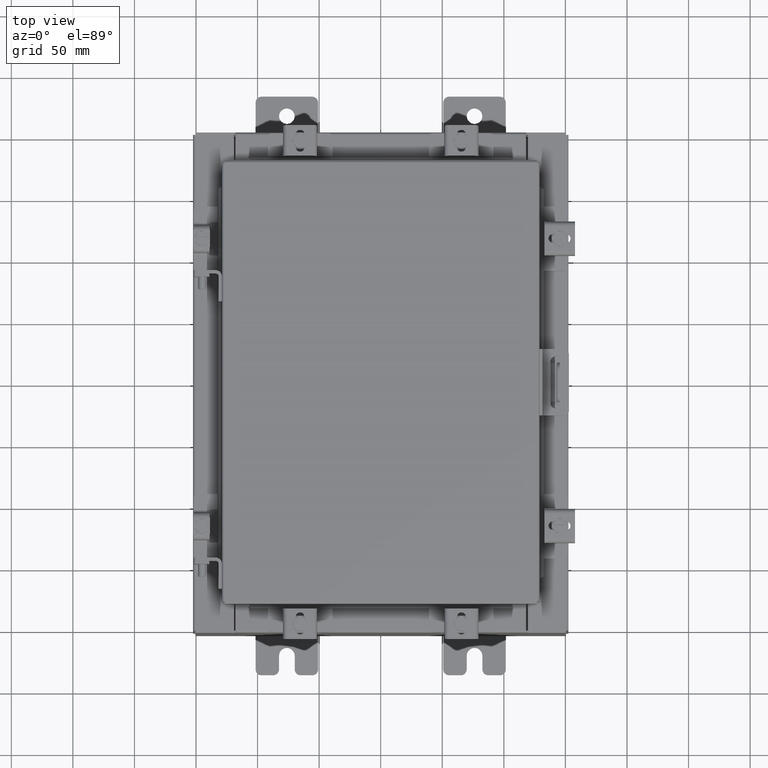
[diagram: clean part render]
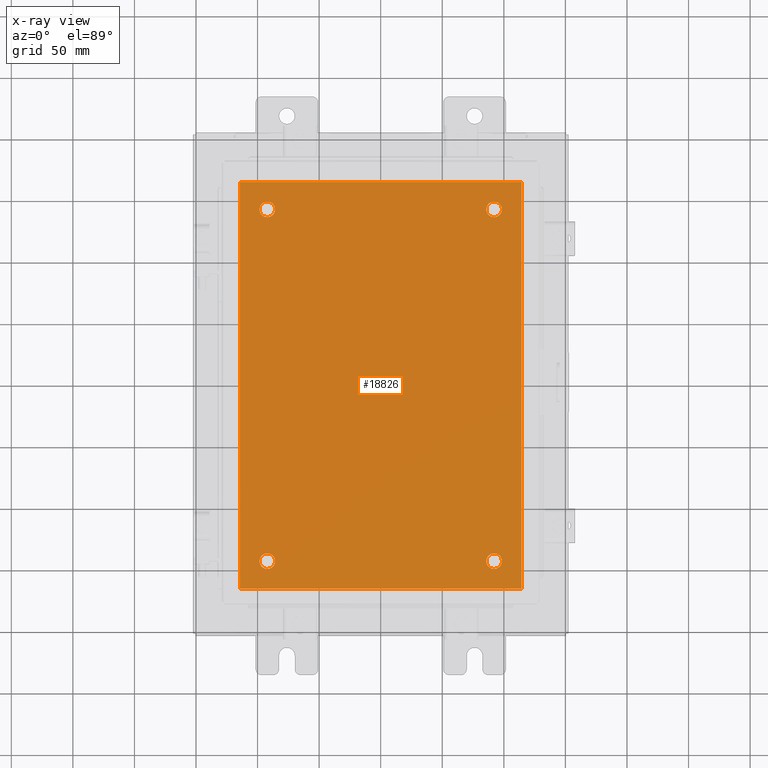
[diagram: x-ray — body ghosted, one internal face saturated and labeled with its STEP entity id]
A machine part, top view, then the same camera in x-ray: the body is ghosted and one INTERNAL B-rep face — a face not visible from any outside direction — is saturated and labeled: STEP entity #18826.
In plain terms, the highlighted planar face has unit normal (0, 0, -1).
Its self-contained STEP definition (entity closure, byte-faithful):
#567 = AXIS2_PLACEMENT_3D ( 'NONE', #9063, #20297, #10691 ) ;
#595 = CARTESIAN_POINT ( 'NONE',  ( -4.499999999999998200, 6.500000000000000900, -0.1040000000000003100 ) ) ;
#642 = LINE ( 'NONE', #595, #17236 ) ;
#666 = DIRECTION ( 'NONE',  ( -1.000000000000000000, -0.0000000000000000000, -0.0000000000000000000 ) ) ;
#877 = EDGE_CURVE ( 'NONE', #11021, #1447, #14286, .T. ) ;
#916 = DIRECTION ( 'NONE',  ( -0.0000000000000000000, -0.0000000000000000000, 1.000000000000000000 ) ) ;
#1332 = EDGE_CURVE ( 'NONE', #19825, #14348, #19528, .T. ) ;
#1447 = VERTEX_POINT ( 'NONE', #17057 ) ;
#1773 = EDGE_CURVE ( 'NONE', #17759, #14174, #642, .T. ) ;
#2239 = FACE_BOUND ( 'NONE', #9908, .T. ) ;
#2586 = AXIS2_PLACEMENT_3D ( 'NONE', #11922, #18264, #3895 ) ;
#2745 = FACE_BOUND ( 'NONE', #2830, .T. ) ;
#2821 = CIRCLE ( 'NONE', #19036, 0.2499999999999998100 ) ;
#2830 = EDGE_LOOP ( 'NONE', ( #15244, #8582 ) ) ;
#3134 = CARTESIAN_POINT ( 'NONE',  ( -3.625000000000000400, 5.625000000000003600, -0.1040000000000003100 ) ) ;
#3156 = DIRECTION ( 'NONE',  ( 1.000000000000000000, 0.0000000000000000000, 0.0000000000000000000 ) ) ;
#3398 = AXIS2_PLACEMENT_3D ( 'NONE', #17090, #7509, #18717 ) ;
#3399 = EDGE_CURVE ( 'NONE', #10525, #14981, #5189, .T. ) ;
#3895 = DIRECTION ( 'NONE',  ( -1.000000000000000000, 0.0000000000000000000, -0.0000000000000000000 ) ) ;
#4102 = CARTESIAN_POINT ( 'NONE',  ( 4.500000000000001800, -6.499999999999999100, -0.1040000000000003100 ) ) ;
#4153 = CARTESIAN_POINT ( 'NONE',  ( 4.500000000000001800, 6.500000000000000900, -0.1040000000000003100 ) ) ;
#4199 = DIRECTION ( 'NONE',  ( -0.0000000000000000000, -1.000000000000000000, -0.0000000000000000000 ) ) ;
#4585 = LINE ( 'NONE', #9627, #12625 ) ;
#4757 = DIRECTION ( 'NONE',  ( -1.000000000000000000, 0.0000000000000000000, 0.0000000000000000000 ) ) ;
#5189 = CIRCLE ( 'NONE', #12549, 0.2499999999999998100 ) ;
#5219 = ORIENTED_EDGE ( 'NONE', *, *, #1332, .T. ) ;
#5368 = ORIENTED_EDGE ( 'NONE', *, *, #16656, .F. ) ;
#5808 = CARTESIAN_POINT ( 'NONE',  ( -4.499999999999998200, -6.499999999999999100, -0.1040000000000003100 ) ) ;
#5985 = CARTESIAN_POINT ( 'NONE',  ( 3.874999999999999100, -5.625000000000003600, -0.1040000000000003100 ) ) ;
#6021 = FACE_BOUND ( 'NONE', #12972, .T. ) ;
#6284 = AXIS2_PLACEMENT_3D ( 'NONE', #17474, #7888, #19094 ) ;
#6432 = DIRECTION ( 'NONE',  ( -0.0000000000000000000, -0.0000000000000000000, 1.000000000000000000 ) ) ;
#6557 = CARTESIAN_POINT ( 'NONE',  ( -3.875000000000000000, 5.625000000000003600, -0.1040000000000003100 ) ) ;
#6566 = EDGE_CURVE ( 'NONE', #9910, #19774, #6576, .T. ) ;
#6576 = CIRCLE ( 'NONE', #567, 0.2499999999999998100 ) ;
#7509 = DIRECTION ( 'NONE',  ( -0.0000000000000000000, -0.0000000000000000000, 1.000000000000000000 ) ) ;
#7604 = CIRCLE ( 'NONE', #20397, 0.2499999999999987000 ) ;
#7888 = DIRECTION ( 'NONE',  ( -0.0000000000000000000, -0.0000000000000000000, 1.000000000000000000 ) ) ;
#7922 = CARTESIAN_POINT ( 'NONE',  ( -3.375000000000000400, 5.625000000000003600, -0.1040000000000003100 ) ) ;
#8245 = CARTESIAN_POINT ( 'NONE',  ( -3.375000000000000400, -5.625000000000003600, -0.1040000000000003100 ) ) ;
#8582 = ORIENTED_EDGE ( 'NONE', *, *, #13218, .T. ) ;
#8744 = ORIENTED_EDGE ( 'NONE', *, *, #13784, .T. ) ;
#9063 = CARTESIAN_POINT ( 'NONE',  ( -3.625000000000000400, -5.625000000000003600, -0.1040000000000003100 ) ) ;
#9111 = VERTEX_POINT ( 'NONE', #4102 ) ;
#9357 = CARTESIAN_POINT ( 'NONE',  ( 3.874999999999999100, 5.625000000000003600, -0.1040000000000003100 ) ) ;
#9627 = CARTESIAN_POINT ( 'NONE',  ( -4.499999999999998200, -6.499999999999999100, -0.1040000000000003100 ) ) ;
#9908 = EDGE_LOOP ( 'NONE', ( #10081, #12871 ) ) ;
#9910 = VERTEX_POINT ( 'NONE', #8245 ) ;
#10081 = ORIENTED_EDGE ( 'NONE', *, *, #6566, .T. ) ;
#10278 = PLANE ( 'NONE',  #2586 ) ;
#10286 = EDGE_CURVE ( 'NONE', #14174, #15501, #20021, .T. ) ;
#10335 = CIRCLE ( 'NONE', #6284, 0.2499999999999998100 ) ;
#10525 = VERTEX_POINT ( 'NONE', #7922 ) ;
#10568 = EDGE_CURVE ( 'NONE', #9111, #17759, #20553, .T. ) ;
#10584 = CARTESIAN_POINT ( 'NONE',  ( -3.625000000000000400, 5.625000000000003600, -0.1040000000000003100 ) ) ;
#10691 = DIRECTION ( 'NONE',  ( -1.000000000000000000, 0.0000000000000000000, 0.0000000000000000000 ) ) ;
#10737 = DIRECTION ( 'NONE',  ( -1.000000000000000000, 0.0000000000000000000, 0.0000000000000000000 ) ) ;
#10818 = FACE_BOUND ( 'NONE', #11599, .T. ) ;
#10933 = CARTESIAN_POINT ( 'NONE',  ( 3.625000000000000400, -5.625000000000003600, -0.1040000000000003100 ) ) ;
#11021 = VERTEX_POINT ( 'NONE', #5985 ) ;
#11051 = CARTESIAN_POINT ( 'NONE',  ( -4.499999999999998200, -6.499999999999999100, -0.1040000000000003100 ) ) ;
#11254 = ORIENTED_EDGE ( 'NONE', *, *, #10286, .F. ) ;
#11515 = EDGE_LOOP ( 'NONE', ( #14685, #5368, #11254, #15024 ) ) ;
#11516 = VECTOR ( 'NONE', #4199, 39.37007874015748100 ) ;
#11540 = VECTOR ( 'NONE', #19334, 39.37007874015748100 ) ;
#11599 = EDGE_LOOP ( 'NONE', ( #8744, #5219 ) ) ;
#11846 = AXIS2_PLACEMENT_3D ( 'NONE', #17152, #14386, #10737 ) ;
#11922 = CARTESIAN_POINT ( 'NONE',  ( 0.0000000000000000000, 0.0000000000000000000, -0.1040000000000003100 ) ) ;
#12199 = DIRECTION ( 'NONE',  ( -1.000000000000000000, 0.0000000000000000000, 0.0000000000000000000 ) ) ;
#12549 = AXIS2_PLACEMENT_3D ( 'NONE', #10584, #916, #12199 ) ;
#12625 = VECTOR ( 'NONE', #3156, 39.37007874015748100 ) ;
#12871 = ORIENTED_EDGE ( 'NONE', *, *, #14388, .T. ) ;
#12900 = CARTESIAN_POINT ( 'NONE',  ( 4.500000000000001800, -6.499999999999999100, -0.1040000000000003100 ) ) ;
#12972 = EDGE_LOOP ( 'NONE', ( #14508, #14093 ) ) ;
#13218 = EDGE_CURVE ( 'NONE', #14981, #10525, #2821, .T. ) ;
#13741 = DIRECTION ( 'NONE',  ( -1.000000000000000000, 0.0000000000000000000, 0.0000000000000000000 ) ) ;
#13784 = EDGE_CURVE ( 'NONE', #14348, #19825, #7604, .T. ) ;
#14093 = ORIENTED_EDGE ( 'NONE', *, *, #18288, .T. ) ;
#14174 = VERTEX_POINT ( 'NONE', #15304 ) ;
#14286 = CIRCLE ( 'NONE', #15842, 0.2499999999999987000 ) ;
#14348 = VERTEX_POINT ( 'NONE', #9357 ) ;
#14375 = DIRECTION ( 'NONE',  ( -0.0000000000000000000, -0.0000000000000000000, 1.000000000000000000 ) ) ;
#14386 = DIRECTION ( 'NONE',  ( -0.0000000000000000000, -0.0000000000000000000, 1.000000000000000000 ) ) ;
#14388 = EDGE_CURVE ( 'NONE', #19774, #9910, #10335, .T. ) ;
#14508 = ORIENTED_EDGE ( 'NONE', *, *, #877, .T. ) ;
#14570 = FACE_OUTER_BOUND ( 'NONE', #11515, .T. ) ;
#14685 = ORIENTED_EDGE ( 'NONE', *, *, #10568, .F. ) ;
#14981 = VERTEX_POINT ( 'NONE', #6557 ) ;
#15024 = ORIENTED_EDGE ( 'NONE', *, *, #1773, .F. ) ;
#15244 = ORIENTED_EDGE ( 'NONE', *, *, #3399, .T. ) ;
#15304 = CARTESIAN_POINT ( 'NONE',  ( -4.499999999999998200, 6.500000000000000900, -0.1040000000000003100 ) ) ;
#15501 = VERTEX_POINT ( 'NONE', #11051 ) ;
#15842 = AXIS2_PLACEMENT_3D ( 'NONE', #10933, #18314, #13741 ) ;
#16033 = CARTESIAN_POINT ( 'NONE',  ( 3.625000000000000400, 5.625000000000003600, -0.1040000000000003100 ) ) ;
#16065 = CARTESIAN_POINT ( 'NONE',  ( 3.375000000000001800, 5.625000000000003600, -0.1040000000000003100 ) ) ;
#16656 = EDGE_CURVE ( 'NONE', #15501, #9111, #4585, .T. ) ;
#17057 = CARTESIAN_POINT ( 'NONE',  ( 3.375000000000001800, -5.625000000000003600, -0.1040000000000003100 ) ) ;
#17090 = CARTESIAN_POINT ( 'NONE',  ( 3.625000000000000400, -5.625000000000003600, -0.1040000000000003100 ) ) ;
#17152 = CARTESIAN_POINT ( 'NONE',  ( 3.625000000000000400, 5.625000000000003600, -0.1040000000000003100 ) ) ;
#17236 = VECTOR ( 'NONE', #666, 39.37007874015748100 ) ;
#17474 = CARTESIAN_POINT ( 'NONE',  ( -3.625000000000000400, -5.625000000000003600, -0.1040000000000003100 ) ) ;
#17632 = DIRECTION ( 'NONE',  ( -1.000000000000000000, 0.0000000000000000000, 0.0000000000000000000 ) ) ;
#17759 = VERTEX_POINT ( 'NONE', #4153 ) ;
#17826 = CIRCLE ( 'NONE', #3398, 0.2499999999999987000 ) ;
#18264 = DIRECTION ( 'NONE',  ( 0.0000000000000000000, 0.0000000000000000000, -1.000000000000000000 ) ) ;
#18288 = EDGE_CURVE ( 'NONE', #1447, #11021, #17826, .T. ) ;
#18314 = DIRECTION ( 'NONE',  ( -0.0000000000000000000, -0.0000000000000000000, 1.000000000000000000 ) ) ;
#18717 = DIRECTION ( 'NONE',  ( -1.000000000000000000, 0.0000000000000000000, 0.0000000000000000000 ) ) ;
#18826 = ADVANCED_FACE ( 'NONE', ( #2239, #6021, #10818, #2745, #14570 ), #10278, .T. ) ;
#19036 = AXIS2_PLACEMENT_3D ( 'NONE', #3134, #14375, #4757 ) ;
#19083 = CARTESIAN_POINT ( 'NONE',  ( -3.875000000000000000, -5.625000000000003600, -0.1040000000000003100 ) ) ;
#19094 = DIRECTION ( 'NONE',  ( -1.000000000000000000, 0.0000000000000000000, 0.0000000000000000000 ) ) ;
#19334 = DIRECTION ( 'NONE',  ( 0.0000000000000000000, 1.000000000000000000, 0.0000000000000000000 ) ) ;
#19528 = CIRCLE ( 'NONE', #11846, 0.2499999999999987000 ) ;
#19774 = VERTEX_POINT ( 'NONE', #19083 ) ;
#19825 = VERTEX_POINT ( 'NONE', #16065 ) ;
#20021 = LINE ( 'NONE', #5808, #11516 ) ;
#20297 = DIRECTION ( 'NONE',  ( -0.0000000000000000000, -0.0000000000000000000, 1.000000000000000000 ) ) ;
#20397 = AXIS2_PLACEMENT_3D ( 'NONE', #16033, #6432, #17632 ) ;
#20553 = LINE ( 'NONE', #12900, #11540 ) ;